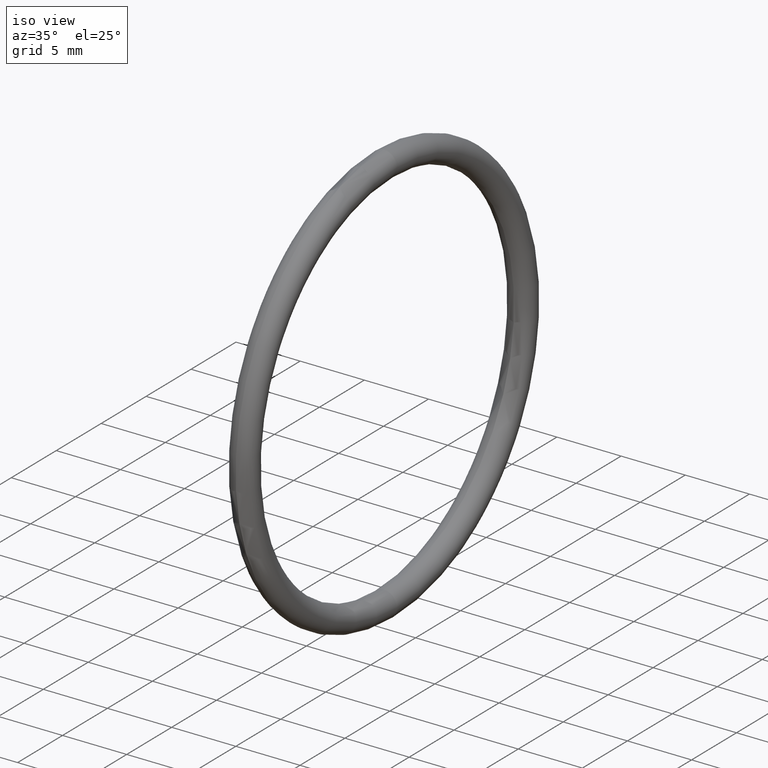
[diagram: clean part render]
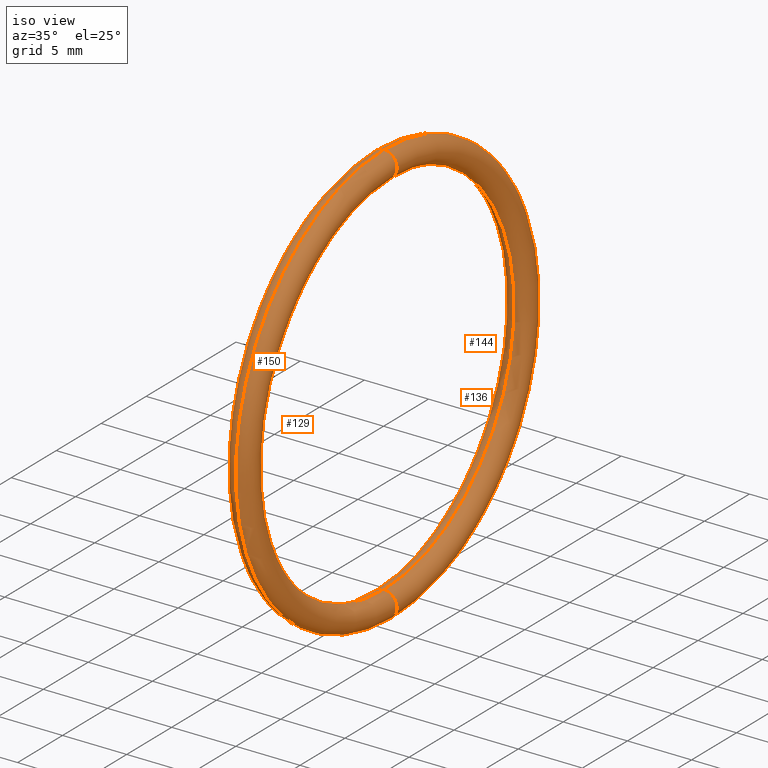
[diagram: same view with one multi-face feature highlighted, each face labeled with its STEP entity id]
A machine part, iso view. The highlighted faces form ONE feature: a constant-radius fillet chain: 4 tangent blend faces with common blend radius 1.016 mm. The faces share edges in the B-rep.
Their STEP definitions:
[1] entity #150 (Torus):
#25 = TOROIDAL_SURFACE ( 'NONE', #86, 0.6099999999999998800, 0.04000000000000000100 ) ;
#86 = AXIS2_PLACEMENT_3D ( 'NONE', #94, #93, #92 ) ;
#89 = CARTESIAN_POINT ( 'NONE',  ( 0.1000000000000000700, 7.470345474798854000E-017, -0.6099999999999998800 ) ) ;
#90 = AXIS2_PLACEMENT_3D ( 'NONE', #89, #125, #124 ) ;
#91 = CIRCLE ( 'NONE', #90, 0.03999999999999998000 ) ;
#92 = DIRECTION ( 'NONE',  ( 0.0000000000000000000, 0.0000000000000000000, 1.000000000000000000 ) ) ;
#93 = DIRECTION ( 'NONE',  ( -1.000000000000000000, 0.0000000000000000000, 0.0000000000000000000 ) ) ;
#94 = CARTESIAN_POINT ( 'NONE',  ( 0.1000000000000000700, 0.0000000000000000000, 0.0000000000000000000 ) ) ;
#98 = FACE_OUTER_BOUND ( 'NONE', #151, .T. ) ;
#105 = DIRECTION ( 'NONE',  ( 0.0000000000000000000, 0.0000000000000000000, 1.000000000000000000 ) ) ;
#106 = DIRECTION ( 'NONE',  ( -1.000000000000000000, 0.0000000000000000000, 0.0000000000000000000 ) ) ;
#107 = CARTESIAN_POINT ( 'NONE',  ( 0.1000000000000000700, 0.0000000000000000000, 0.0000000000000000000 ) ) ;
#108 = AXIS2_PLACEMENT_3D ( 'NONE', #107, #106, #105 ) ;
#109 = CIRCLE ( 'NONE', #108, 0.5699999999999999500 ) ;
#110 = CARTESIAN_POINT ( 'NONE',  ( 0.1000000000000000700, 0.0000000000000000000, 0.5699999999999999500 ) ) ;
#111 = DIRECTION ( 'NONE',  ( 0.0000000000000000000, 0.0000000000000000000, -1.000000000000000000 ) ) ;
#112 = DIRECTION ( 'NONE',  ( 0.0000000000000000000, -1.000000000000000000, 0.0000000000000000000 ) ) ;
#113 = CARTESIAN_POINT ( 'NONE',  ( 0.1000000000000000700, 0.0000000000000000000, 0.6099999999999998800 ) ) ;
#114 = AXIS2_PLACEMENT_3D ( 'NONE', #113, #112, #111 ) ;
#115 = CIRCLE ( 'NONE', #114, 0.03999999999999998000 ) ;
#116 = CARTESIAN_POINT ( 'NONE',  ( 0.1000000000000000700, 0.0000000000000000000, 0.6499999999999999100 ) ) ;
#117 = DIRECTION ( 'NONE',  ( 0.0000000000000000000, 0.0000000000000000000, 1.000000000000000000 ) ) ;
#118 = DIRECTION ( 'NONE',  ( -1.000000000000000000, 0.0000000000000000000, 0.0000000000000000000 ) ) ;
#119 = CARTESIAN_POINT ( 'NONE',  ( 0.1000000000000000700, 0.0000000000000000000, 0.0000000000000000000 ) ) ;
#120 = AXIS2_PLACEMENT_3D ( 'NONE', #119, #118, #117 ) ;
#121 = CIRCLE ( 'NONE', #120, 0.6499999999999999100 ) ;
#122 = CARTESIAN_POINT ( 'NONE',  ( 0.1000000000000000700, 6.980486755139912600E-017, -0.5699999999999999500 ) ) ;
#123 = CARTESIAN_POINT ( 'NONE',  ( 0.1000000000000000700, 7.960204194457794200E-017, -0.6499999999999999100 ) ) ;
#124 = DIRECTION ( 'NONE',  ( 0.0000000000000000000, -1.224646799147354900E-016, 1.000000000000000000 ) ) ;
#125 = DIRECTION ( 'NONE',  ( 0.0000000000000000000, 1.000000000000000000, 1.224646799147353200E-016 ) ) ;
#150 = ADVANCED_FACE ( 'NONE', ( #98 ), #25, .T. ) ;
#151 = EDGE_LOOP ( 'NONE', ( #152, #156, #192, #195 ) ) ;
#152 = ORIENTED_EDGE ( 'NONE', *, *, #153, .F. ) ;
#153 = EDGE_CURVE ( 'NONE', #154, #155, #91, .T. ) ;
#154 = VERTEX_POINT ( 'NONE', #123 ) ;
#155 = VERTEX_POINT ( 'NONE', #122 ) ;
#156 = ORIENTED_EDGE ( 'NONE', *, *, #157, .T. ) ;
#157 = EDGE_CURVE ( 'NONE', #154, #191, #121, .T. ) ;
#191 = VERTEX_POINT ( 'NONE', #116 ) ;
#192 = ORIENTED_EDGE ( 'NONE', *, *, #193, .T. ) ;
#193 = EDGE_CURVE ( 'NONE', #191, #194, #115, .T. ) ;
#194 = VERTEX_POINT ( 'NONE', #110 ) ;
#195 = ORIENTED_EDGE ( 'NONE', *, *, #196, .F. ) ;
#196 = EDGE_CURVE ( 'NONE', #155, #194, #109, .T. ) ;
[2] entity #129 (Torus):
#87 = DIRECTION ( 'NONE',  ( 0.0000000000000000000, 0.0000000000000000000, -1.000000000000000000 ) ) ;
#88 = DIRECTION ( 'NONE',  ( 0.0000000000000000000, -1.000000000000000000, 0.0000000000000000000 ) ) ;
#95 = CIRCLE ( 'NONE', #97, 0.03999999999999998000 ) ;
#96 = CARTESIAN_POINT ( 'NONE',  ( 0.1000000000000000700, 0.0000000000000000000, 0.6099999999999998800 ) ) ;
#97 = AXIS2_PLACEMENT_3D ( 'NONE', #96, #88, #87 ) ;
#105 = DIRECTION ( 'NONE',  ( 0.0000000000000000000, 0.0000000000000000000, 1.000000000000000000 ) ) ;
#106 = DIRECTION ( 'NONE',  ( -1.000000000000000000, 0.0000000000000000000, 0.0000000000000000000 ) ) ;
#107 = CARTESIAN_POINT ( 'NONE',  ( 0.1000000000000000700, 0.0000000000000000000, 0.0000000000000000000 ) ) ;
#108 = AXIS2_PLACEMENT_3D ( 'NONE', #107, #106, #105 ) ;
#109 = CIRCLE ( 'NONE', #108, 0.5699999999999999500 ) ;
#110 = CARTESIAN_POINT ( 'NONE',  ( 0.1000000000000000700, 0.0000000000000000000, 0.5699999999999999500 ) ) ;
#116 = CARTESIAN_POINT ( 'NONE',  ( 0.1000000000000000700, 0.0000000000000000000, 0.6499999999999999100 ) ) ;
#117 = DIRECTION ( 'NONE',  ( 0.0000000000000000000, 0.0000000000000000000, 1.000000000000000000 ) ) ;
#118 = DIRECTION ( 'NONE',  ( -1.000000000000000000, 0.0000000000000000000, 0.0000000000000000000 ) ) ;
#119 = CARTESIAN_POINT ( 'NONE',  ( 0.1000000000000000700, 0.0000000000000000000, 0.0000000000000000000 ) ) ;
#120 = AXIS2_PLACEMENT_3D ( 'NONE', #119, #118, #117 ) ;
#121 = CIRCLE ( 'NONE', #120, 0.6499999999999999100 ) ;
#122 = CARTESIAN_POINT ( 'NONE',  ( 0.1000000000000000700, 6.980486755139912600E-017, -0.5699999999999999500 ) ) ;
#123 = CARTESIAN_POINT ( 'NONE',  ( 0.1000000000000000700, 7.960204194457794200E-017, -0.6499999999999999100 ) ) ;
#128 = EDGE_CURVE ( 'NONE', #155, #154, #190, .T. ) ;
#129 = ADVANCED_FACE ( 'NONE', ( #185 ), #184, .T. ) ;
#130 = EDGE_LOOP ( 'NONE', ( #131, #132, #133, #134 ) ) ;
#131 = ORIENTED_EDGE ( 'NONE', *, *, #157, .F. ) ;
#132 = ORIENTED_EDGE ( 'NONE', *, *, #128, .F. ) ;
#133 = ORIENTED_EDGE ( 'NONE', *, *, #196, .T. ) ;
#134 = ORIENTED_EDGE ( 'NONE', *, *, #148, .T. ) ;
#148 = EDGE_CURVE ( 'NONE', #194, #191, #95, .T. ) ;
#154 = VERTEX_POINT ( 'NONE', #123 ) ;
#155 = VERTEX_POINT ( 'NONE', #122 ) ;
#157 = EDGE_CURVE ( 'NONE', #154, #191, #121, .T. ) ;
#180 = DIRECTION ( 'NONE',  ( 0.0000000000000000000, 0.0000000000000000000, 1.000000000000000000 ) ) ;
#181 = DIRECTION ( 'NONE',  ( -1.000000000000000000, 0.0000000000000000000, 0.0000000000000000000 ) ) ;
#182 = CARTESIAN_POINT ( 'NONE',  ( 0.1000000000000000700, 0.0000000000000000000, 0.0000000000000000000 ) ) ;
#183 = AXIS2_PLACEMENT_3D ( 'NONE', #182, #181, #180 ) ;
#184 = TOROIDAL_SURFACE ( 'NONE', #183, 0.6099999999999998800, 0.04000000000000000100 ) ;
#185 = FACE_OUTER_BOUND ( 'NONE', #130, .T. ) ;
#186 = DIRECTION ( 'NONE',  ( 0.0000000000000000000, -1.224646799147354900E-016, 1.000000000000000000 ) ) ;
#187 = DIRECTION ( 'NONE',  ( 0.0000000000000000000, 1.000000000000000000, 1.224646799147353200E-016 ) ) ;
#188 = CARTESIAN_POINT ( 'NONE',  ( 0.1000000000000000700, 7.470345474798854000E-017, -0.6099999999999998800 ) ) ;
#189 = AXIS2_PLACEMENT_3D ( 'NONE', #188, #187, #186 ) ;
#190 = CIRCLE ( 'NONE', #189, 0.03999999999999998000 ) ;
#191 = VERTEX_POINT ( 'NONE', #116 ) ;
#194 = VERTEX_POINT ( 'NONE', #110 ) ;
#196 = EDGE_CURVE ( 'NONE', #155, #194, #109, .T. ) ;
[3] entity #144 (Torus):
#87 = DIRECTION ( 'NONE',  ( 0.0000000000000000000, 0.0000000000000000000, -1.000000000000000000 ) ) ;
#88 = DIRECTION ( 'NONE',  ( 0.0000000000000000000, -1.000000000000000000, 0.0000000000000000000 ) ) ;
#95 = CIRCLE ( 'NONE', #97, 0.03999999999999998000 ) ;
#96 = CARTESIAN_POINT ( 'NONE',  ( 0.1000000000000000700, 0.0000000000000000000, 0.6099999999999998800 ) ) ;
#97 = AXIS2_PLACEMENT_3D ( 'NONE', #96, #88, #87 ) ;
#110 = CARTESIAN_POINT ( 'NONE',  ( 0.1000000000000000700, 0.0000000000000000000, 0.5699999999999999500 ) ) ;
#116 = CARTESIAN_POINT ( 'NONE',  ( 0.1000000000000000700, 0.0000000000000000000, 0.6499999999999999100 ) ) ;
#122 = CARTESIAN_POINT ( 'NONE',  ( 0.1000000000000000700, 6.980486755139912600E-017, -0.5699999999999999500 ) ) ;
#123 = CARTESIAN_POINT ( 'NONE',  ( 0.1000000000000000700, 7.960204194457794200E-017, -0.6499999999999999100 ) ) ;
#126 = ORIENTED_EDGE ( 'NONE', *, *, #143, .T. ) ;
#127 = ORIENTED_EDGE ( 'NONE', *, *, #128, .T. ) ;
#128 = EDGE_CURVE ( 'NONE', #155, #154, #190, .T. ) ;
#140 = EDGE_CURVE ( 'NONE', #191, #154, #173, .T. ) ;
#143 = EDGE_CURVE ( 'NONE', #194, #155, #168, .T. ) ;
#144 = ADVANCED_FACE ( 'NONE', ( #163 ), #162, .T. ) ;
#145 = EDGE_LOOP ( 'NONE', ( #146, #147, #126, #127 ) ) ;
#146 = ORIENTED_EDGE ( 'NONE', *, *, #140, .F. ) ;
#147 = ORIENTED_EDGE ( 'NONE', *, *, #148, .F. ) ;
#148 = EDGE_CURVE ( 'NONE', #194, #191, #95, .T. ) ;
#154 = VERTEX_POINT ( 'NONE', #123 ) ;
#155 = VERTEX_POINT ( 'NONE', #122 ) ;
#158 = DIRECTION ( 'NONE',  ( 0.0000000000000000000, 0.0000000000000000000, 1.000000000000000000 ) ) ;
#159 = DIRECTION ( 'NONE',  ( -1.000000000000000000, 0.0000000000000000000, 0.0000000000000000000 ) ) ;
#160 = CARTESIAN_POINT ( 'NONE',  ( 0.1000000000000000700, 0.0000000000000000000, 0.0000000000000000000 ) ) ;
#161 = AXIS2_PLACEMENT_3D ( 'NONE', #160, #159, #158 ) ;
#162 = TOROIDAL_SURFACE ( 'NONE', #161, 0.6099999999999998800, 0.04000000000000000100 ) ;
#163 = FACE_OUTER_BOUND ( 'NONE', #145, .T. ) ;
#164 = DIRECTION ( 'NONE',  ( 0.0000000000000000000, 0.0000000000000000000, 1.000000000000000000 ) ) ;
#165 = DIRECTION ( 'NONE',  ( -1.000000000000000000, 0.0000000000000000000, 0.0000000000000000000 ) ) ;
#166 = CARTESIAN_POINT ( 'NONE',  ( 0.1000000000000000700, 0.0000000000000000000, 0.0000000000000000000 ) ) ;
#167 = AXIS2_PLACEMENT_3D ( 'NONE', #166, #165, #164 ) ;
#168 = CIRCLE ( 'NONE', #167, 0.5699999999999999500 ) ;
#169 = DIRECTION ( 'NONE',  ( 0.0000000000000000000, 0.0000000000000000000, 1.000000000000000000 ) ) ;
#170 = DIRECTION ( 'NONE',  ( -1.000000000000000000, 0.0000000000000000000, 0.0000000000000000000 ) ) ;
#171 = CARTESIAN_POINT ( 'NONE',  ( 0.1000000000000000700, 0.0000000000000000000, 0.0000000000000000000 ) ) ;
#172 = AXIS2_PLACEMENT_3D ( 'NONE', #171, #170, #169 ) ;
#173 = CIRCLE ( 'NONE', #172, 0.6499999999999999100 ) ;
#186 = DIRECTION ( 'NONE',  ( 0.0000000000000000000, -1.224646799147354900E-016, 1.000000000000000000 ) ) ;
#187 = DIRECTION ( 'NONE',  ( 0.0000000000000000000, 1.000000000000000000, 1.224646799147353200E-016 ) ) ;
#188 = CARTESIAN_POINT ( 'NONE',  ( 0.1000000000000000700, 7.470345474798854000E-017, -0.6099999999999998800 ) ) ;
#189 = AXIS2_PLACEMENT_3D ( 'NONE', #188, #187, #186 ) ;
#190 = CIRCLE ( 'NONE', #189, 0.03999999999999998000 ) ;
#191 = VERTEX_POINT ( 'NONE', #116 ) ;
#194 = VERTEX_POINT ( 'NONE', #110 ) ;
[4] entity #136 (Torus):
#89 = CARTESIAN_POINT ( 'NONE',  ( 0.1000000000000000700, 7.470345474798854000E-017, -0.6099999999999998800 ) ) ;
#90 = AXIS2_PLACEMENT_3D ( 'NONE', #89, #125, #124 ) ;
#91 = CIRCLE ( 'NONE', #90, 0.03999999999999998000 ) ;
#110 = CARTESIAN_POINT ( 'NONE',  ( 0.1000000000000000700, 0.0000000000000000000, 0.5699999999999999500 ) ) ;
#111 = DIRECTION ( 'NONE',  ( 0.0000000000000000000, 0.0000000000000000000, -1.000000000000000000 ) ) ;
#112 = DIRECTION ( 'NONE',  ( 0.0000000000000000000, -1.000000000000000000, 0.0000000000000000000 ) ) ;
#113 = CARTESIAN_POINT ( 'NONE',  ( 0.1000000000000000700, 0.0000000000000000000, 0.6099999999999998800 ) ) ;
#114 = AXIS2_PLACEMENT_3D ( 'NONE', #113, #112, #111 ) ;
#115 = CIRCLE ( 'NONE', #114, 0.03999999999999998000 ) ;
#116 = CARTESIAN_POINT ( 'NONE',  ( 0.1000000000000000700, 0.0000000000000000000, 0.6499999999999999100 ) ) ;
#122 = CARTESIAN_POINT ( 'NONE',  ( 0.1000000000000000700, 6.980486755139912600E-017, -0.5699999999999999500 ) ) ;
#123 = CARTESIAN_POINT ( 'NONE',  ( 0.1000000000000000700, 7.960204194457794200E-017, -0.6499999999999999100 ) ) ;
#124 = DIRECTION ( 'NONE',  ( 0.0000000000000000000, -1.224646799147354900E-016, 1.000000000000000000 ) ) ;
#125 = DIRECTION ( 'NONE',  ( 0.0000000000000000000, 1.000000000000000000, 1.224646799147353200E-016 ) ) ;
#136 = ADVANCED_FACE ( 'NONE', ( #179 ), #178, .T. ) ;
#137 = EDGE_LOOP ( 'NONE', ( #138, #139, #141, #142 ) ) ;
#138 = ORIENTED_EDGE ( 'NONE', *, *, #193, .F. ) ;
#139 = ORIENTED_EDGE ( 'NONE', *, *, #140, .T. ) ;
#140 = EDGE_CURVE ( 'NONE', #191, #154, #173, .T. ) ;
#141 = ORIENTED_EDGE ( 'NONE', *, *, #153, .T. ) ;
#142 = ORIENTED_EDGE ( 'NONE', *, *, #143, .F. ) ;
#143 = EDGE_CURVE ( 'NONE', #194, #155, #168, .T. ) ;
#153 = EDGE_CURVE ( 'NONE', #154, #155, #91, .T. ) ;
#154 = VERTEX_POINT ( 'NONE', #123 ) ;
#155 = VERTEX_POINT ( 'NONE', #122 ) ;
#164 = DIRECTION ( 'NONE',  ( 0.0000000000000000000, 0.0000000000000000000, 1.000000000000000000 ) ) ;
#165 = DIRECTION ( 'NONE',  ( -1.000000000000000000, 0.0000000000000000000, 0.0000000000000000000 ) ) ;
#166 = CARTESIAN_POINT ( 'NONE',  ( 0.1000000000000000700, 0.0000000000000000000, 0.0000000000000000000 ) ) ;
#167 = AXIS2_PLACEMENT_3D ( 'NONE', #166, #165, #164 ) ;
#168 = CIRCLE ( 'NONE', #167, 0.5699999999999999500 ) ;
#169 = DIRECTION ( 'NONE',  ( 0.0000000000000000000, 0.0000000000000000000, 1.000000000000000000 ) ) ;
#170 = DIRECTION ( 'NONE',  ( -1.000000000000000000, 0.0000000000000000000, 0.0000000000000000000 ) ) ;
#171 = CARTESIAN_POINT ( 'NONE',  ( 0.1000000000000000700, 0.0000000000000000000, 0.0000000000000000000 ) ) ;
#172 = AXIS2_PLACEMENT_3D ( 'NONE', #171, #170, #169 ) ;
#173 = CIRCLE ( 'NONE', #172, 0.6499999999999999100 ) ;
#174 = DIRECTION ( 'NONE',  ( 0.0000000000000000000, 0.0000000000000000000, 1.000000000000000000 ) ) ;
#175 = DIRECTION ( 'NONE',  ( -1.000000000000000000, 0.0000000000000000000, 0.0000000000000000000 ) ) ;
#176 = CARTESIAN_POINT ( 'NONE',  ( 0.1000000000000000700, 0.0000000000000000000, 0.0000000000000000000 ) ) ;
#177 = AXIS2_PLACEMENT_3D ( 'NONE', #176, #175, #174 ) ;
#178 = TOROIDAL_SURFACE ( 'NONE', #177, 0.6099999999999998800, 0.04000000000000000100 ) ;
#179 = FACE_OUTER_BOUND ( 'NONE', #137, .T. ) ;
#191 = VERTEX_POINT ( 'NONE', #116 ) ;
#193 = EDGE_CURVE ( 'NONE', #191, #194, #115, .T. ) ;
#194 = VERTEX_POINT ( 'NONE', #110 ) ;